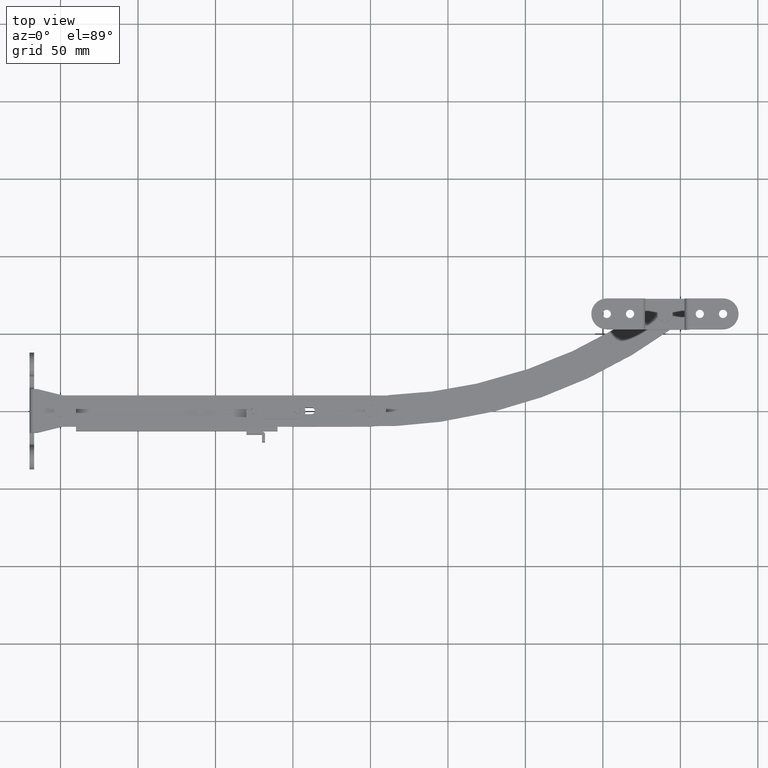
[diagram: clean part render]
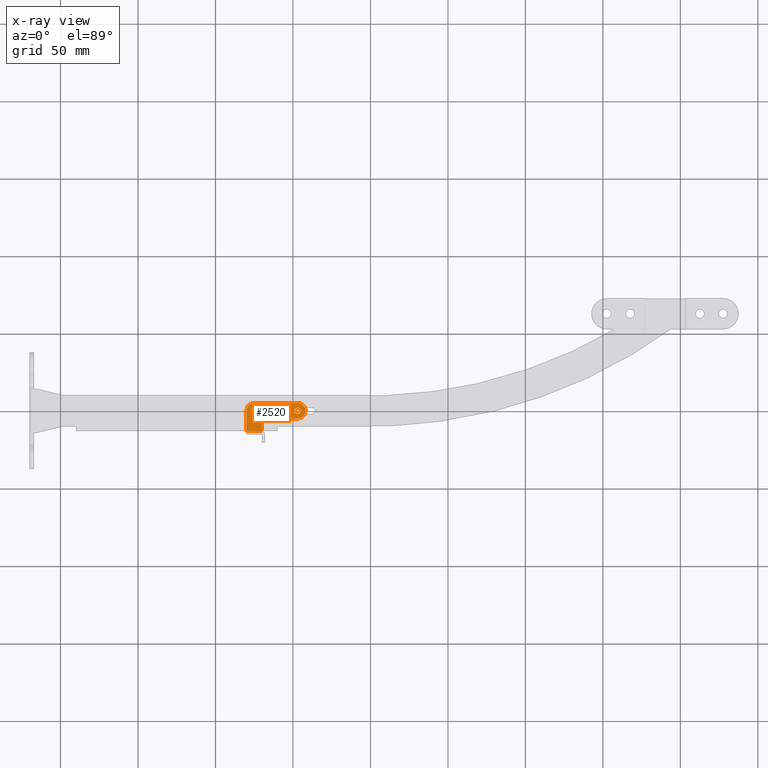
[diagram: x-ray — body ghosted, one internal face saturated and labeled with its STEP entity id]
A machine part, top view, then the same camera in x-ray: the body is ghosted and one INTERNAL B-rep face — a face not visible from any outside direction — is saturated and labeled: STEP entity #2520.
In plain terms, the highlighted face is a freeform B-spline surface patch.
Its self-contained STEP definition (entity closure, byte-faithful):
#1466=CARTESIAN_POINT('',(125.241970186029310,-2.035669528453219,7.149993999999831));
#1467=VERTEX_POINT('',#1466);
#1468=CARTESIAN_POINT('',(122.950000000000000,0.0,7.149993999999830));
#1469=VERTEX_POINT('',#1468);
#1470=CARTESIAN_POINT('',(125.241970186029260,-2.035669528453219,7.149993999999831));
#1471=CARTESIAN_POINT('',(125.121409450322080,-2.050000000000000,7.149993999999830));
#1472=CARTESIAN_POINT('',(125.0,-2.050000000000000,7.149993999999830));
#1473=CARTESIAN_POINT('',(122.950000000000030,-2.050000000000001,7.149993999999830));
#1474=CARTESIAN_POINT('',(122.950000000000000,0.0,7.149993999999830));
#1482=(BOUNDED_CURVE()B_SPLINE_CURVE(2,(#1470,#1471,#1472,#1473,#1474),.UNSPECIFIED.,.F.,.U.)B_SPLINE_CURVE_WITH_KNOTS((3,2,3),(0.229562472688268,0.250000000000000,0.500000000000000),.UNSPECIFIED.)CURVE()GEOMETRIC_REPRESENTATION_ITEM()RATIONAL_B_SPLINE_CURVE((0.956026752566194,0.976055947364315,1.0,0.707106781186547,1.0))REPRESENTATION_ITEM(''));
#1483=EDGE_CURVE('',#1467,#1469,#1482,.T.);
#1485=CARTESIAN_POINT('',(124.874850490434400,2.046176336549586,7.149993999999829));
#1486=VERTEX_POINT('',#1485);
#1487=CARTESIAN_POINT('',(122.950000000000000,0.0,7.149993999999830));
#1488=CARTESIAN_POINT('',(122.950000000000020,1.928447430510929,7.149993999999831));
#1489=CARTESIAN_POINT('',(124.874850490434430,2.046176336549587,7.149993999999829));
#1497=(BOUNDED_CURVE()B_SPLINE_CURVE(2,(#1487,#1488,#1489),.UNSPECIFIED.,.F.,.U.)B_SPLINE_CURVE_WITH_KNOTS((3,3),(0.500000000000000,0.739332961648453),.UNSPECIFIED.)CURVE()GEOMETRIC_REPRESENTATION_ITEM()RATIONAL_B_SPLINE_CURVE((1.0,0.719603993978512,0.976072040401185))REPRESENTATION_ITEM(''));
#1498=EDGE_CURVE('',#1469,#1486,#1497,.T.);
#1565=CARTESIAN_POINT('',(127.050000000000000,0.0,7.149993999999830));
#1566=VERTEX_POINT('',#1565);
#1567=CARTESIAN_POINT('',(127.050000000000000,0.0,7.149993999999830));
#1568=CARTESIAN_POINT('',(127.049999999999980,-1.820757769223807,7.149993999999830));
#1569=CARTESIAN_POINT('',(125.241970186029350,-2.035669528453219,7.149993999999831));
#1577=(BOUNDED_CURVE()B_SPLINE_CURVE(2,(#1567,#1568,#1569),.UNSPECIFIED.,.F.,.U.)B_SPLINE_CURVE_WITH_KNOTS((3,3),(0.0,0.229562472688268),.UNSPECIFIED.)CURVE()GEOMETRIC_REPRESENTATION_ITEM()RATIONAL_B_SPLINE_CURVE((1.0,0.731050833822232,0.956026752566194))REPRESENTATION_ITEM(''));
#1578=EDGE_CURVE('',#1566,#1467,#1577,.T.);
#1612=CARTESIAN_POINT('',(124.874850490434380,2.046176336549586,7.149993999999829));
#1613=CARTESIAN_POINT('',(124.937366831708870,2.050000000000000,7.149993999999831));
#1614=CARTESIAN_POINT('',(125.0,2.050000000000000,7.149993999999830));
#1615=CARTESIAN_POINT('',(127.050000000000010,2.050000000000001,7.149993999999830));
#1616=CARTESIAN_POINT('',(127.050000000000000,0.0,7.149993999999830));
#1624=(BOUNDED_CURVE()B_SPLINE_CURVE(2,(#1612,#1613,#1614,#1615,#1616),.UNSPECIFIED.,.F.,.U.)B_SPLINE_CURVE_WITH_KNOTS((3,2,3),(0.739332961648453,0.750000000000000,1.0),.UNSPECIFIED.)CURVE()GEOMETRIC_REPRESENTATION_ITEM()RATIONAL_B_SPLINE_CURVE((0.976072040401186,0.987502787208036,1.0,0.707106781186547,1.0))REPRESENTATION_ITEM(''));
#1625=EDGE_CURVE('',#1486,#1566,#1624,.T.);
#1838=CARTESIAN_POINT('',(153.241939186029300,-2.035669528453219,7.149993999999831));
#1839=VERTEX_POINT('',#1838);
#1840=CARTESIAN_POINT('',(150.949969000000010,0.0,7.149993999999830));
#1841=VERTEX_POINT('',#1840);
#1842=CARTESIAN_POINT('',(153.241939186029270,-2.035669528453219,7.149993999999831));
#1843=CARTESIAN_POINT('',(153.121378450322030,-2.050000000000001,7.149993999999830));
#1844=CARTESIAN_POINT('',(152.999968999999990,-2.050000000000000,7.149993999999830));
#1845=CARTESIAN_POINT('',(150.949968999999980,-2.050000000000001,7.149993999999830));
#1846=CARTESIAN_POINT('',(150.949969000000010,0.0,7.149993999999830));
#1854=(BOUNDED_CURVE()B_SPLINE_CURVE(2,(#1842,#1843,#1844,#1845,#1846),.UNSPECIFIED.,.F.,.U.)B_SPLINE_CURVE_WITH_KNOTS((3,2,3),(0.229562472688268,0.250000000000000,0.500000000000000),.UNSPECIFIED.)CURVE()GEOMETRIC_REPRESENTATION_ITEM()RATIONAL_B_SPLINE_CURVE((0.956026752566194,0.976055947364316,1.0,0.707106781186547,1.0))REPRESENTATION_ITEM(''));
#1855=EDGE_CURVE('',#1839,#1841,#1854,.T.);
#1857=CARTESIAN_POINT('',(152.874819490434500,2.046176336549587,7.149993999999831));
#1858=VERTEX_POINT('',#1857);
#1859=CARTESIAN_POINT('',(150.949969000000010,0.0,7.149993999999830));
#1860=CARTESIAN_POINT('',(150.949969000000010,1.928447430510955,7.149993999999831));
#1861=CARTESIAN_POINT('',(152.874819490434450,2.046176336549587,7.149993999999831));
#1869=(BOUNDED_CURVE()B_SPLINE_CURVE(2,(#1859,#1860,#1861),.UNSPECIFIED.,.F.,.U.)B_SPLINE_CURVE_WITH_KNOTS((3,3),(0.500000000000000,0.739332961648455),.UNSPECIFIED.)CURVE()GEOMETRIC_REPRESENTATION_ITEM()RATIONAL_B_SPLINE_CURVE((1.0,0.719603993978509,0.976072040401190))REPRESENTATION_ITEM(''));
#1870=EDGE_CURVE('',#1841,#1858,#1869,.T.);
#1937=CARTESIAN_POINT('',(155.049969000000000,0.0,7.149993999999830));
#1938=VERTEX_POINT('',#1937);
#1939=CARTESIAN_POINT('',(155.049969000000000,0.0,7.149993999999830));
#1940=CARTESIAN_POINT('',(155.049969000000000,-1.820757769223807,7.149993999999829));
#1941=CARTESIAN_POINT('',(153.241939186029330,-2.035669528453219,7.149993999999831));
#1949=(BOUNDED_CURVE()B_SPLINE_CURVE(2,(#1939,#1940,#1941),.UNSPECIFIED.,.F.,.U.)B_SPLINE_CURVE_WITH_KNOTS((3,3),(0.0,0.229562472688268),.UNSPECIFIED.)CURVE()GEOMETRIC_REPRESENTATION_ITEM()RATIONAL_B_SPLINE_CURVE((1.0,0.731050833822232,0.956026752566194))REPRESENTATION_ITEM(''));
#1950=EDGE_CURVE('',#1938,#1839,#1949,.T.);
#1984=CARTESIAN_POINT('',(152.874819490434480,2.046176336549587,7.149993999999831));
#1985=CARTESIAN_POINT('',(152.937335831708880,2.050000000000000,7.149993999999830));
#1986=CARTESIAN_POINT('',(152.999968999999990,2.050000000000000,7.149993999999830));
#1987=CARTESIAN_POINT('',(155.049969000000060,2.050000000000001,7.149993999999830));
#1988=CARTESIAN_POINT('',(155.049969000000000,0.0,7.149993999999830));
#1996=(BOUNDED_CURVE()B_SPLINE_CURVE(2,(#1984,#1985,#1986,#1987,#1988),.UNSPECIFIED.,.F.,.U.)B_SPLINE_CURVE_WITH_KNOTS((3,2,3),(0.739332961648454,0.750000000000000,1.0),.UNSPECIFIED.)CURVE()GEOMETRIC_REPRESENTATION_ITEM()RATIONAL_B_SPLINE_CURVE((0.976072040401188,0.987502787208037,1.0,0.707106781186547,1.0))REPRESENTATION_ITEM(''));
#1997=EDGE_CURVE('',#1858,#1938,#1996,.T.);
#2417=CARTESIAN_POINT('',(118.101901622101810,-14.214088286168179,7.149993999999881));
#2418=CARTESIAN_POINT('',(159.898068397127190,-14.214088286168179,7.149993999999881));
#2419=CARTESIAN_POINT('',(118.101901622101810,5.914085613398040,7.149993999999881));
#2420=CARTESIAN_POINT('',(159.898068397127190,5.914085613398040,7.149993999999881));
#2421=B_SPLINE_SURFACE_WITH_KNOTS('',1,1,((#2417,#2419),(#2418,#2420)),.UNSPECIFIED.,.F.,.F.,.U.,(2,2),(2,2),(0.0,41.796166775025434),(0.0,20.128173899566210),.UNSPECIFIED.);
#2422=CARTESIAN_POINT('',(130.0,-7.0,7.149993999999830));
#2423=VERTEX_POINT('',#2422);
#2424=CARTESIAN_POINT('',(130.0,-13.300002999999800,7.149993999999881));
#2425=VERTEX_POINT('',#2424);
#2426=CARTESIAN_POINT('',(130.0,-7.0,7.149993999999830));
#2427=CARTESIAN_POINT('',(130.0,-13.300002999999800,7.149993999999881));
#2428=QUASI_UNIFORM_CURVE('',1,(#2426,#2427),.UNSPECIFIED.,.F.,.U.);
#2429=EDGE_CURVE('',#2423,#2425,#2428,.T.);
#2430=ORIENTED_EDGE('',*,*,#2429,.T.);
#2431=CARTESIAN_POINT('',(120.0,-13.300002999999800,7.149993999999881));
#2432=VERTEX_POINT('',#2431);
#2433=CARTESIAN_POINT('',(130.0,-13.300002999999800,7.149993999999881));
#2434=CARTESIAN_POINT('',(120.0,-13.300002999999800,7.149993999999881));
#2435=QUASI_UNIFORM_CURVE('',1,(#2433,#2434),.UNSPECIFIED.,.F.,.U.);
#2436=EDGE_CURVE('',#2425,#2432,#2435,.T.);
#2437=ORIENTED_EDGE('',*,*,#2436,.T.);
#2438=CARTESIAN_POINT('',(120.0,0.0,7.149993999999830));
#2439=VERTEX_POINT('',#2438);
#2440=CARTESIAN_POINT('',(120.0,-13.300002999999800,7.149993999999881));
#2441=CARTESIAN_POINT('',(120.0,0.0,7.149993999999830));
#2442=QUASI_UNIFORM_CURVE('',1,(#2440,#2441),.UNSPECIFIED.,.F.,.U.);
#2443=EDGE_CURVE('',#2432,#2439,#2442,.T.);
#2444=ORIENTED_EDGE('',*,*,#2443,.T.);
#2445=CARTESIAN_POINT('',(125.000000087266400,5.0,7.149993999999830));
#2446=VERTEX_POINT('',#2445);
#2447=CARTESIAN_POINT('',(120.0,0.0,7.149993999999830));
#2448=CARTESIAN_POINT('',(119.999999999999990,2.071067837425208,7.149993999999830));
#2449=CARTESIAN_POINT('',(121.464466124920610,3.535533936786065,7.149993999999830));
#2450=CARTESIAN_POINT('',(122.928932249841210,5.000000036146923,7.149993999999830));
#2451=CARTESIAN_POINT('',(125.000000087266400,4.999999999999999,7.149993999999830));
#2459=(BOUNDED_CURVE()B_SPLINE_CURVE(2,(#2447,#2448,#2449,#2450,#2451),.UNSPECIFIED.,.F.,.U.)B_SPLINE_CURVE_WITH_KNOTS((3,2,3),(0.0,0.500000000000000,1.0),.UNSPECIFIED.)CURVE()GEOMETRIC_REPRESENTATION_ITEM()RATIONAL_B_SPLINE_CURVE((1.0,0.923879530841517,1.0,0.923879530841517,1.0))REPRESENTATION_ITEM(''));
#2460=EDGE_CURVE('',#2439,#2446,#2459,.T.);
#2461=ORIENTED_EDGE('',*,*,#2460,.T.);
#2462=CARTESIAN_POINT('',(152.999968999999990,5.000000000000110,7.149993999999830));
#2463=VERTEX_POINT('',#2462);
#2464=CARTESIAN_POINT('',(125.000000087266400,5.0,7.149993999999830));
#2465=CARTESIAN_POINT('',(152.999968999999990,5.000000000000110,7.149993999999830));
#2466=QUASI_UNIFORM_CURVE('',1,(#2464,#2465),.UNSPECIFIED.,.F.,.U.);
#2467=EDGE_CURVE('',#2446,#2463,#2466,.T.);
#2468=ORIENTED_EDGE('',*,*,#2467,.T.);
#2469=CARTESIAN_POINT('',(152.999969349065990,-5.0,7.149993999999830));
#2470=VERTEX_POINT('',#2469);
#2471=CARTESIAN_POINT('',(152.999968999999990,5.0,7.149993999999830));
#2472=CARTESIAN_POINT('',(157.999968825467080,5.0,7.149993999999831));
#2473=CARTESIAN_POINT('',(157.999968999999990,0.000000174533003,7.149993999999830));
#2474=CARTESIAN_POINT('',(157.999969174533020,-4.999999650934000,7.149993999999831));
#2475=CARTESIAN_POINT('',(152.999969349065990,-4.999999999999988,7.149993999999830));
#2483=(BOUNDED_CURVE()B_SPLINE_CURVE(2,(#2471,#2472,#2473,#2474,#2475),.UNSPECIFIED.,.F.,.U.)B_SPLINE_CURVE_WITH_KNOTS((3,2,3),(0.0,0.500000000000000,1.0),.UNSPECIFIED.)CURVE()GEOMETRIC_REPRESENTATION_ITEM()RATIONAL_B_SPLINE_CURVE((1.0,0.707106793527894,1.0,0.707106793527894,1.0))REPRESENTATION_ITEM(''));
#2484=EDGE_CURVE('',#2463,#2470,#2483,.T.);
#2485=ORIENTED_EDGE('',*,*,#2484,.T.);
#2486=CARTESIAN_POINT('',(132.0,-5.0,7.149993999999830));
#2487=VERTEX_POINT('',#2486);
#2488=CARTESIAN_POINT('',(152.999969349065990,-5.0,7.149993999999830));
#2489=CARTESIAN_POINT('',(132.0,-5.0,7.149993999999830));
#2490=QUASI_UNIFORM_CURVE('',1,(#2488,#2489),.UNSPECIFIED.,.F.,.U.);
#2491=EDGE_CURVE('',#2470,#2487,#2490,.T.);
#2492=ORIENTED_EDGE('',*,*,#2491,.T.);
#2493=CARTESIAN_POINT('',(130.0,-7.0,7.149993999999830));
#2494=CARTESIAN_POINT('',(130.0,-5.000000000000001,7.149993999999830));
#2495=CARTESIAN_POINT('',(132.0,-5.0,7.149993999999830));
#2503=(BOUNDED_CURVE()B_SPLINE_CURVE(2,(#2493,#2494,#2495),.UNSPECIFIED.,.F.,.U.)CURVE()GEOMETRIC_REPRESENTATION_ITEM()QUASI_UNIFORM_CURVE()RATIONAL_B_SPLINE_CURVE((1.0,0.707106781186548,1.0))REPRESENTATION_ITEM(''));
#2504=EDGE_CURVE('',#2423,#2487,#2503,.T.);
#2505=ORIENTED_EDGE('',*,*,#2504,.F.);
#2506=EDGE_LOOP('',(#2430,#2437,#2444,#2461,#2468,#2485,#2492,#2505));
#2507=FACE_OUTER_BOUND('',#2506,.T.);
#2508=ORIENTED_EDGE('',*,*,#1870,.F.);
#2509=ORIENTED_EDGE('',*,*,#1855,.F.);
#2510=ORIENTED_EDGE('',*,*,#1950,.F.);
#2511=ORIENTED_EDGE('',*,*,#1997,.F.);
#2512=EDGE_LOOP('',(#2508,#2509,#2510,#2511));
#2513=FACE_BOUND('',#2512,.T.);
#2514=ORIENTED_EDGE('',*,*,#1498,.F.);
#2515=ORIENTED_EDGE('',*,*,#1483,.F.);
#2516=ORIENTED_EDGE('',*,*,#1578,.F.);
#2517=ORIENTED_EDGE('',*,*,#1625,.F.);
#2518=EDGE_LOOP('',(#2514,#2515,#2516,#2517));
#2519=FACE_BOUND('',#2518,.T.);
#2520=ADVANCED_FACE('',(#2507,#2513,#2519),#2421,.F.);